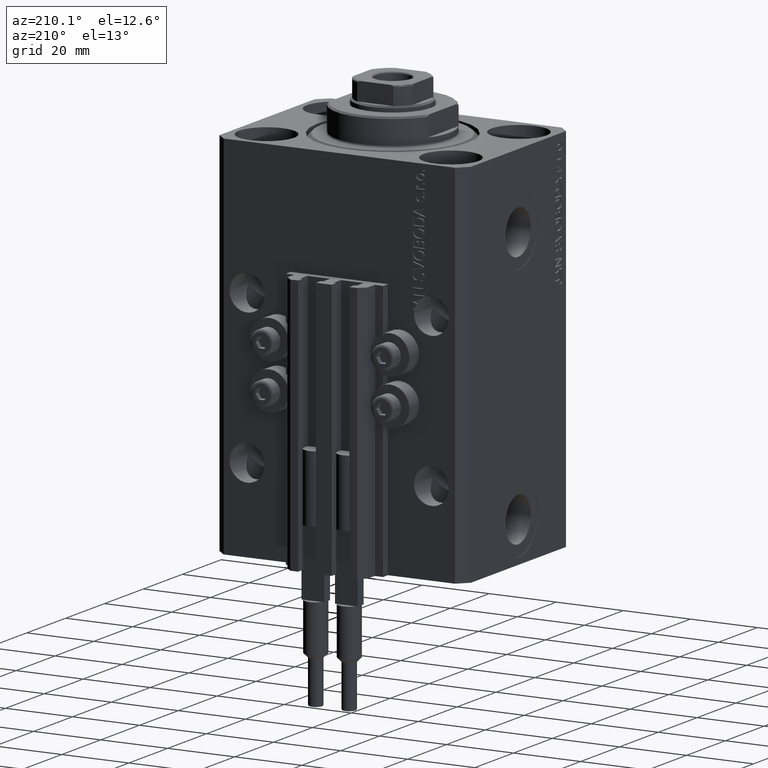
[diagram: clean part render]
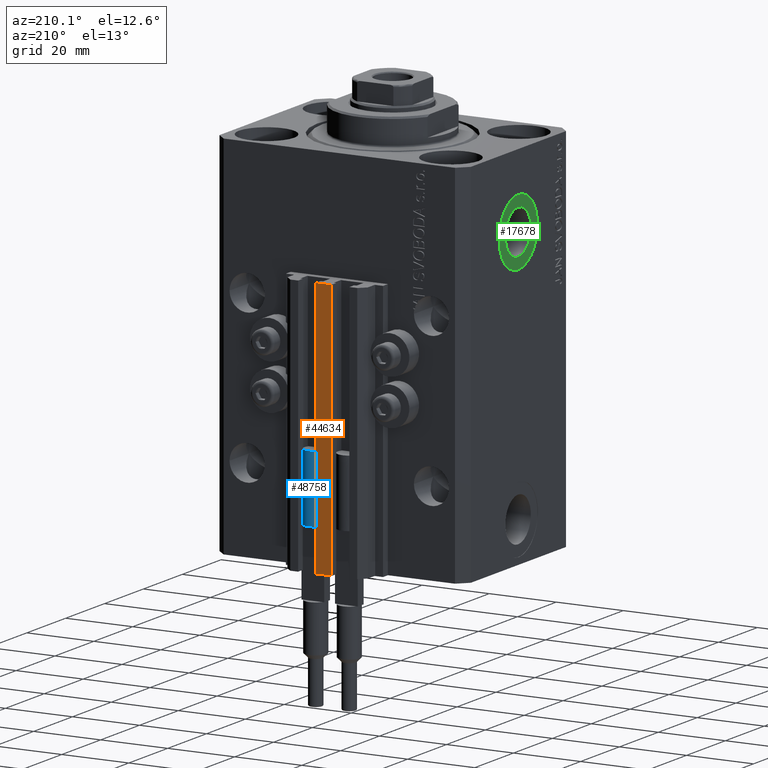
[diagram: same view with three faces highlighted in distinct colors, each labeled with its STEP entity id]
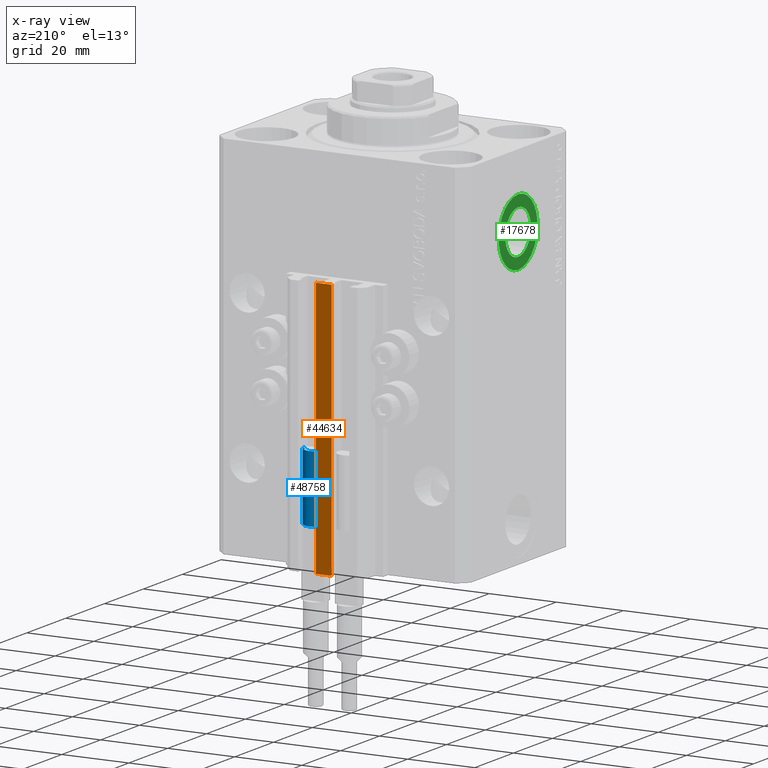
[diagram: x-ray of the same camera — body ghosted, the three highlighted faces saturated]
A machine part, auxiliary view with three faces highlighted in distinct colors.
The next image is the same camera in x-ray (body ghosted, the three faces saturated) — at least one of them is partly hidden behind the body in this view.
Their STEP definitions:

[orange] entity #44634 — the highlighted planar face has unit normal (0, -1, 0).
#227 = LINE ( 'NONE', #29735, #44714 ) ;
#8713 = CARTESIAN_POINT ( 'NONE',  ( -2.350000000000003642, 35.50000000000001421, -33.00000000000000000 ) ) ;
#8966 = LINE ( 'NONE', #8713, #23003 ) ;
#9622 = VECTOR ( 'NONE', #34329, 1000.000000000000000 ) ;
#11999 = DIRECTION ( 'NONE',  ( 0.000000000000000000, 0.000000000000000000, 1.000000000000000000 ) ) ;
#12498 = EDGE_LOOP ( 'NONE', ( #32141, #19050, #44055, #23723 ) ) ;
#14302 = EDGE_CURVE ( 'NONE', #35805, #44975, #227, .T. ) ;
#15841 = AXIS2_PLACEMENT_3D ( 'NONE', #35914, #32459, #24323 ) ;
#17403 = FACE_OUTER_BOUND ( 'NONE', #12498, .T. ) ;
#19050 = ORIENTED_EDGE ( 'NONE', *, *, #38928, .F. ) ;
#19565 = VERTEX_POINT ( 'NONE', #20062 ) ;
#20062 = CARTESIAN_POINT ( 'NONE',  ( 2.349999999999999645, 35.50000000000001421, -110.0000000000000000 ) ) ;
#22671 = EDGE_CURVE ( 'NONE', #35805, #19565, #37542, .T. ) ;
#23003 = VECTOR ( 'NONE', #38517, 1000.000000000000000 ) ;
#23723 = ORIENTED_EDGE ( 'NONE', *, *, #14302, .T. ) ;
#24323 = DIRECTION ( 'NONE',  ( 0.000000000000000000, -0.000000000000000000, -1.000000000000000000 ) ) ;
#24872 = DIRECTION ( 'NONE',  ( 0.000000000000000000, 0.000000000000000000, 1.000000000000000000 ) ) ;
#25324 = CARTESIAN_POINT ( 'NONE',  ( -2.350000000000003642, 35.50000000000001421, -33.00000000000000000 ) ) ;
#29735 = CARTESIAN_POINT ( 'NONE',  ( -2.350000000000003642, 35.50000000000001421, -110.0000000000000000 ) ) ;
#31024 = VERTEX_POINT ( 'NONE', #48478 ) ;
#32141 = ORIENTED_EDGE ( 'NONE', *, *, #45553, .T. ) ;
#32459 = DIRECTION ( 'NONE',  ( 0.000000000000000000, -1.000000000000000000, 0.000000000000000000 ) ) ;
#34094 = CARTESIAN_POINT ( 'NONE',  ( -2.350000000000003642, 35.50000000000001421, -110.0000000000000000 ) ) ;
#34329 = DIRECTION ( 'NONE',  ( 1.000000000000000000, 0.000000000000000000, 0.000000000000000000 ) ) ;
#35805 = VERTEX_POINT ( 'NONE', #37884 ) ;
#35914 = CARTESIAN_POINT ( 'NONE',  ( -2.350000000000003642, 35.50000000000001421, -110.0000000000000000 ) ) ;
#36453 = LINE ( 'NONE', #39913, #48484 ) ;
#37542 = LINE ( 'NONE', #34094, #9622 ) ;
#37884 = CARTESIAN_POINT ( 'NONE',  ( -2.350000000000003642, 35.50000000000001421, -110.0000000000000000 ) ) ;
#38517 = DIRECTION ( 'NONE',  ( 1.000000000000000000, 0.000000000000000000, 0.000000000000000000 ) ) ;
#38928 = EDGE_CURVE ( 'NONE', #19565, #31024, #36453, .T. ) ;
#39913 = CARTESIAN_POINT ( 'NONE',  ( 2.349999999999999645, 35.50000000000001421, -110.0000000000000000 ) ) ;
#44026 = PLANE ( 'NONE',  #15841 ) ;
#44055 = ORIENTED_EDGE ( 'NONE', *, *, #22671, .F. ) ;
#44634 = ADVANCED_FACE ( 'NONE', ( #17403 ), #44026, .F. ) ;
#44714 = VECTOR ( 'NONE', #11999, 1000.000000000000000 ) ;
#44975 = VERTEX_POINT ( 'NONE', #25324 ) ;
#45553 = EDGE_CURVE ( 'NONE', #44975, #31024, #8966, .T. ) ;
#48478 = CARTESIAN_POINT ( 'NONE',  ( 2.349999999999999645, 35.50000000000001421, -33.00000000000000000 ) ) ;
#48484 = VECTOR ( 'NONE', #24872, 1000.000000000000000 ) ;

[blue] entity #48758 — the highlighted cylindrical surface (edge-blend (fillet) strip) has radius 3.4 mm, axis along (0, 0, 1).
#141 = DIRECTION ( 'NONE',  ( 0.000000000000000000, 0.000000000000000000, 1.000000000000000000 ) ) ;
#324 = AXIS2_PLACEMENT_3D ( 'NONE', #4278, #348, #15324 ) ;
#348 = DIRECTION ( 'NONE',  ( -0.000000000000000000, -0.000000000000000000, -1.000000000000000000 ) ) ;
#1218 = ORIENTED_EDGE ( 'NONE', *, *, #3463, .F. ) ;
#1848 = CARTESIAN_POINT ( 'NONE',  ( 0.000000000000000000, 0.000000000000000000, 0.000000000000000000 ) ) ;
#1980 = VERTEX_POINT ( 'NONE', #32119 ) ;
#2375 = CIRCLE ( 'NONE', #40126, 3.400000000000000355 ) ;
#2576 = AXIS2_PLACEMENT_3D ( 'NONE', #33851, #141, #45194 ) ;
#3463 = EDGE_CURVE ( 'NONE', #23745, #25131, #2375, .T. ) ;
#3521 = ORIENTED_EDGE ( 'NONE', *, *, #45491, .F. ) ;
#3669 = EDGE_LOOP ( 'NONE', ( #3521, #23263, #41047, #17659, #17665, #1218 ) ) ;
#4278 = CARTESIAN_POINT ( 'NONE',  ( 0.000000000000000000, 0.000000000000000000, 20.00000000000000000 ) ) ;
#4451 = EDGE_CURVE ( 'NONE', #25131, #1980, #39354, .T. ) ;
#11040 = AXIS2_PLACEMENT_3D ( 'NONE', #28921, #37062, #25953 ) ;
#11201 = EDGE_CURVE ( 'NONE', #48561, #33821, #32388, .T. ) ;
#13848 = AXIS2_PLACEMENT_3D ( 'NONE', #1848, #27928, #20529 ) ;
#13962 = DIRECTION ( 'NONE',  ( 1.000000000000000000, 0.000000000000000000, 0.000000000000000000 ) ) ;
#15288 = VECTOR ( 'NONE', #17842, 1000.000000000000000 ) ;
#15324 = DIRECTION ( 'NONE',  ( -1.000000000000000000, 0.000000000000000000, 0.000000000000000000 ) ) ;
#17659 = ORIENTED_EDGE ( 'NONE', *, *, #32964, .F. ) ;
#17665 = ORIENTED_EDGE ( 'NONE', *, *, #4451, .F. ) ;
#17742 = CIRCLE ( 'NONE', #13848, 3.400000000000000355 ) ;
#17842 = DIRECTION ( 'NONE',  ( -0.000000000000000000, -0.000000000000000000, -1.000000000000000000 ) ) ;
#20529 = DIRECTION ( 'NONE',  ( 1.000000000000000000, 0.000000000000000000, 0.000000000000000000 ) ) ;
#21847 = DIRECTION ( 'NONE',  ( 0.000000000000000000, 0.000000000000000000, 1.000000000000000000 ) ) ;
#23263 = ORIENTED_EDGE ( 'NONE', *, *, #11201, .T. ) ;
#23745 = VERTEX_POINT ( 'NONE', #38101 ) ;
#25023 = CARTESIAN_POINT ( 'NONE',  ( -3.400000000000000355, 0.000000000000000000, 0.000000000000000000 ) ) ;
#25131 = VERTEX_POINT ( 'NONE', #48492 ) ;
#25486 = CARTESIAN_POINT ( 'NONE',  ( -3.400000000000000355, 0.000000000000000000, 20.00000000000000000 ) ) ;
#25953 = DIRECTION ( 'NONE',  ( 1.000000000000000000, 0.000000000000000000, 0.000000000000000000 ) ) ;
#26168 = FACE_OUTER_BOUND ( 'NONE', #3669, .T. ) ;
#27928 = DIRECTION ( 'NONE',  ( 0.000000000000000000, 0.000000000000000000, 1.000000000000000000 ) ) ;
#28921 = CARTESIAN_POINT ( 'NONE',  ( 0.000000000000000000, 0.000000000000000000, 20.00000000000000000 ) ) ;
#32119 = CARTESIAN_POINT ( 'NONE',  ( -3.399999999999999467, -4.915049848600952119E-16, 20.00000000000000000 ) ) ;
#32388 = LINE ( 'NONE', #35993, #45780 ) ;
#32964 = EDGE_CURVE ( 'NONE', #1980, #42573, #44232, .T. ) ;
#33821 = VERTEX_POINT ( 'NONE', #47279 ) ;
#33851 = CARTESIAN_POINT ( 'NONE',  ( 0.000000000000000000, 0.000000000000000000, 20.00000000000000000 ) ) ;
#35251 = EDGE_CURVE ( 'NONE', #33821, #42573, #17742, .T. ) ;
#35993 = CARTESIAN_POINT ( 'NONE',  ( 3.400000000000000355, 4.163799117101001052E-16, 20.00000000000000000 ) ) ;
#37062 = DIRECTION ( 'NONE',  ( 0.000000000000000000, 0.000000000000000000, 1.000000000000000000 ) ) ;
#38101 = CARTESIAN_POINT ( 'NONE',  ( 3.051229260478471428, 1.500000000000000000, 20.00000000000000000 ) ) ;
#39354 = CIRCLE ( 'NONE', #11040, 3.400000000000000355 ) ;
#40126 = AXIS2_PLACEMENT_3D ( 'NONE', #47751, #21847, #13962 ) ;
#41047 = ORIENTED_EDGE ( 'NONE', *, *, #35251, .T. ) ;
#41219 = CYLINDRICAL_SURFACE ( 'NONE', #324, 3.400000000000000355 ) ;
#41345 = CARTESIAN_POINT ( 'NONE',  ( 3.400000000000000355, 0.000000000000000000, 20.00000000000000000 ) ) ;
#42573 = VERTEX_POINT ( 'NONE', #25023 ) ;
#43391 = DIRECTION ( 'NONE',  ( -0.000000000000000000, -0.000000000000000000, -1.000000000000000000 ) ) ;
#43458 = CIRCLE ( 'NONE', #2576, 3.400000000000000355 ) ;
#44232 = LINE ( 'NONE', #25486, #15288 ) ;
#45194 = DIRECTION ( 'NONE',  ( 1.000000000000000000, 0.000000000000000000, 0.000000000000000000 ) ) ;
#45491 = EDGE_CURVE ( 'NONE', #48561, #23745, #43458, .T. ) ;
#45780 = VECTOR ( 'NONE', #43391, 1000.000000000000000 ) ;
#47279 = CARTESIAN_POINT ( 'NONE',  ( 3.400000000000000355, 4.163799117101001052E-16, 0.000000000000000000 ) ) ;
#47751 = CARTESIAN_POINT ( 'NONE',  ( 0.000000000000000000, 0.000000000000000000, 20.00000000000000000 ) ) ;
#48492 = CARTESIAN_POINT ( 'NONE',  ( -3.051229260478471428, 1.500000000000000000, 20.00000000000000000 ) ) ;
#48561 = VERTEX_POINT ( 'NONE', #41345 ) ;
#48758 = ADVANCED_FACE ( 'NONE', ( #26168 ), #41219, .T. ) ;

[green] entity #17678 — the highlighted planar face has unit normal (-1, 0, 0).
#320 = DIRECTION ( 'NONE',  ( 0.000000000000000000, 0.000000000000000000, 1.000000000000000000 ) ) ;
#1545 = CARTESIAN_POINT ( 'NONE',  ( -37.39999999999999147, 0.000000000000000000, -15.41999999999999993 ) ) ;
#4772 = EDGE_CURVE ( 'NONE', #31150, #27547, #34657, .T. ) ;
#6020 = ORIENTED_EDGE ( 'NONE', *, *, #38262, .T. ) ;
#6299 = AXIS2_PLACEMENT_3D ( 'NONE', #8883, #8628, #34987 ) ;
#7734 = DIRECTION ( 'NONE',  ( 0.000000000000000000, 0.000000000000000000, 1.000000000000000000 ) ) ;
#8047 = EDGE_LOOP ( 'NONE', ( #9829, #42562 ) ) ;
#8403 = CARTESIAN_POINT ( 'NONE',  ( -37.39999999999999147, 0.000000000000000000, -22.00000000000000000 ) ) ;
#8628 = DIRECTION ( 'NONE',  ( -1.000000000000000000, 0.000000000000000000, 0.000000000000000000 ) ) ;
#8883 = CARTESIAN_POINT ( 'NONE',  ( -37.39999999999999147, 0.000000000000000000, -22.00000000000000000 ) ) ;
#9829 = ORIENTED_EDGE ( 'NONE', *, *, #18011, .F. ) ;
#15096 = CARTESIAN_POINT ( 'NONE',  ( -37.39999999999999147, 0.000000000000000000, -22.00000000000000000 ) ) ;
#15519 = FACE_BOUND ( 'NONE', #8047, .T. ) ;
#16316 = CARTESIAN_POINT ( 'NONE',  ( -37.39999999999999147, 0.000000000000000000, -22.00000000000000000 ) ) ;
#17678 = ADVANCED_FACE ( 'NONE', ( #15519, #22926 ), #27329, .T. ) ;
#18011 = EDGE_CURVE ( 'NONE', #27547, #31150, #26712, .T. ) ;
#20887 = CARTESIAN_POINT ( 'NONE',  ( -37.39999999999999147, 0.000000000000000000, -11.99999999999999822 ) ) ;
#22571 = AXIS2_PLACEMENT_3D ( 'NONE', #15096, #37777, #7734 ) ;
#22926 = FACE_OUTER_BOUND ( 'NONE', #42159, .T. ) ;
#23973 = EDGE_CURVE ( 'NONE', #24396, #31289, #27705, .T. ) ;
#24396 = VERTEX_POINT ( 'NONE', #20887 ) ;
#24466 = DIRECTION ( 'NONE',  ( -1.000000000000000000, 0.000000000000000000, 0.000000000000000000 ) ) ;
#26712 = CIRCLE ( 'NONE', #35387, 6.579999999999999183 ) ;
#26924 = DIRECTION ( 'NONE',  ( 0.000000000000000000, 0.000000000000000000, 1.000000000000000000 ) ) ;
#27329 = PLANE ( 'NONE',  #6299 ) ;
#27547 = VERTEX_POINT ( 'NONE', #1545 ) ;
#27705 = CIRCLE ( 'NONE', #42674, 10.00000000000000000 ) ;
#31150 = VERTEX_POINT ( 'NONE', #39251 ) ;
#31289 = VERTEX_POINT ( 'NONE', #32818 ) ;
#32818 = CARTESIAN_POINT ( 'NONE',  ( -37.39999999999999147, 1.224646799147353059E-15, -32.00000000000000000 ) ) ;
#34657 = CIRCLE ( 'NONE', #42545, 6.579999999999999183 ) ;
#34759 = DIRECTION ( 'NONE',  ( -1.000000000000000000, 0.000000000000000000, 0.000000000000000000 ) ) ;
#34901 = ORIENTED_EDGE ( 'NONE', *, *, #23973, .T. ) ;
#34987 = DIRECTION ( 'NONE',  ( 0.000000000000000000, 0.000000000000000000, 1.000000000000000000 ) ) ;
#35310 = DIRECTION ( 'NONE',  ( 0.000000000000000000, 0.000000000000000000, 1.000000000000000000 ) ) ;
#35387 = AXIS2_PLACEMENT_3D ( 'NONE', #42446, #42947, #26924 ) ;
#37777 = DIRECTION ( 'NONE',  ( -1.000000000000000000, 0.000000000000000000, 0.000000000000000000 ) ) ;
#38262 = EDGE_CURVE ( 'NONE', #31289, #24396, #38290, .T. ) ;
#38290 = CIRCLE ( 'NONE', #22571, 10.00000000000000000 ) ;
#39251 = CARTESIAN_POINT ( 'NONE',  ( -37.39999999999999147, 8.058175938389579572E-16, -28.57999999999999829 ) ) ;
#42159 = EDGE_LOOP ( 'NONE', ( #34901, #6020 ) ) ;
#42446 = CARTESIAN_POINT ( 'NONE',  ( -37.39999999999999147, 0.000000000000000000, -22.00000000000000000 ) ) ;
#42545 = AXIS2_PLACEMENT_3D ( 'NONE', #16316, #24466, #35310 ) ;
#42562 = ORIENTED_EDGE ( 'NONE', *, *, #4772, .F. ) ;
#42674 = AXIS2_PLACEMENT_3D ( 'NONE', #8403, #34759, #320 ) ;
#42947 = DIRECTION ( 'NONE',  ( -1.000000000000000000, 0.000000000000000000, 0.000000000000000000 ) ) ;